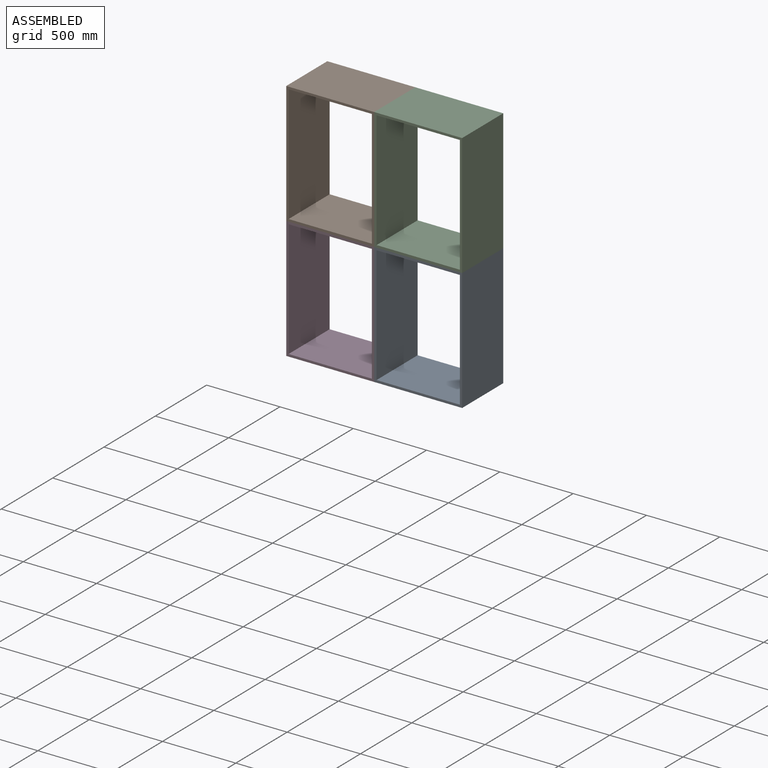
[diagram: assembled view]
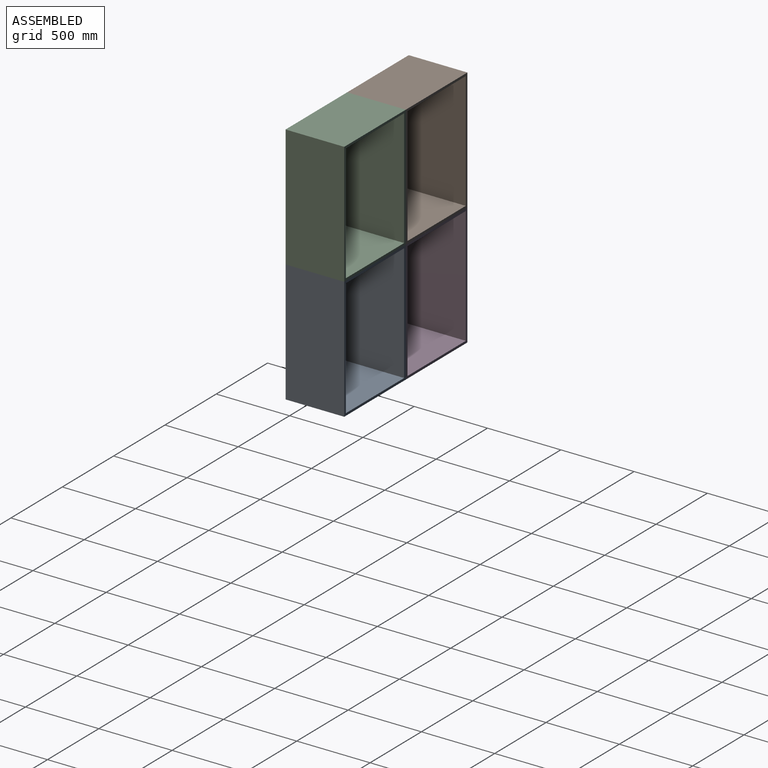
[diagram: assembled view, second angle]
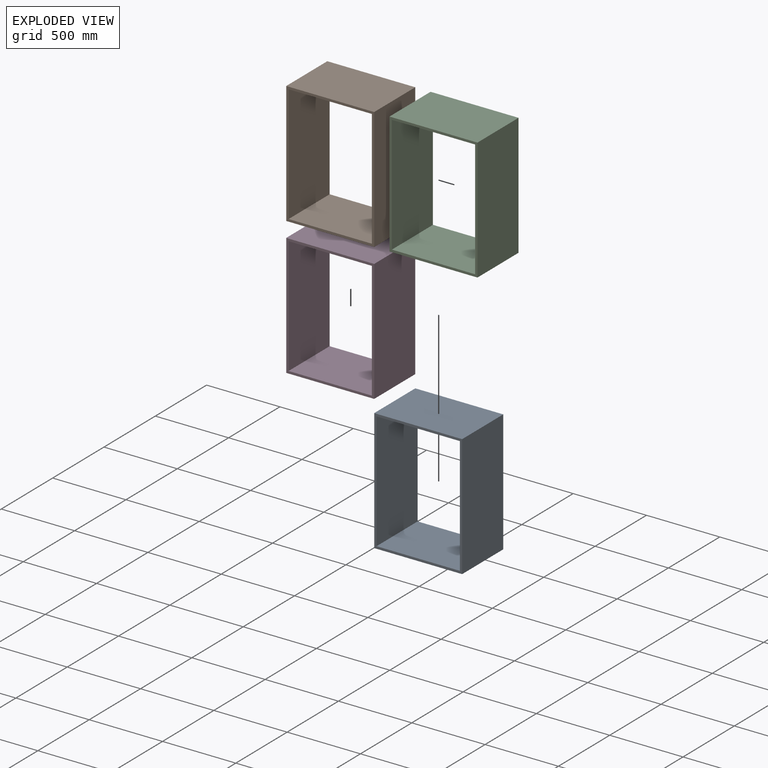
[diagram: exploded view]
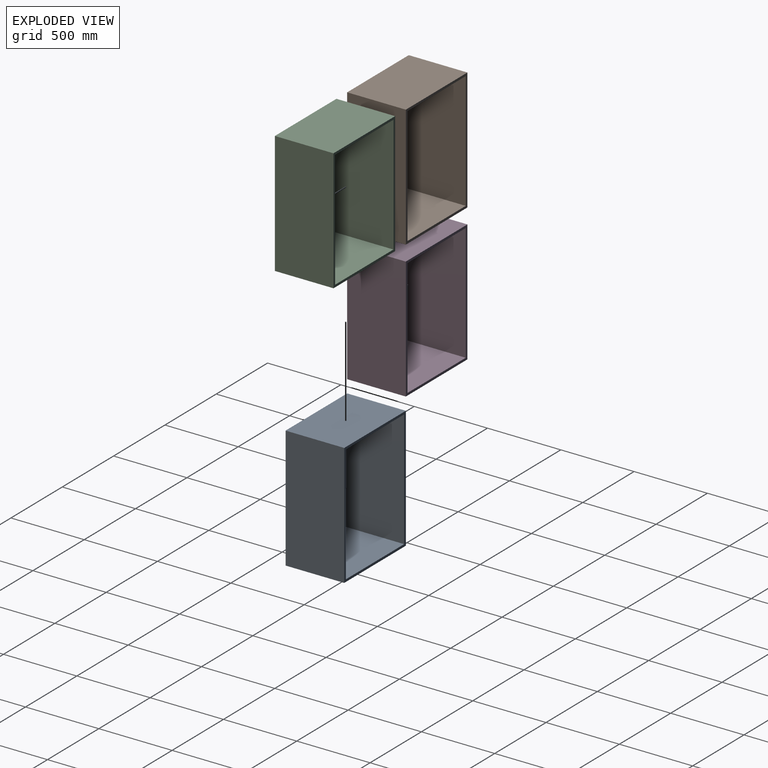
[diagram: exploded view, second angle]
ASSEMBLY  parts=4 mates=3
PART A: 10 faces, bbox 600x400x832 mm
  f0: plane 832x400mm, normal (-1,0,0), area 332800mm2, adj f2,f3,f6,f9
  f1: plane 800x400mm, normal (1,0,0), area 320000mm2, adj f2,f3,f4,f8
  f2: plane 832x600mm, normal (0,-1,0), area 44800mm2, adj f0,f1,f4,f5,f6,f7,f8,f9
  f3: plane 832x600mm, normal (0,1,0), area 44800mm2, adj f0,f1,f4,f5,f6,f7,f8,f9
  f4: plane 568x400mm, normal (0,0,-1), area 227200mm2, adj f1,f2,f3,f7
  f5: plane 832x400mm, normal (1,0,0), area 332800mm2, adj f2,f3,f6,f9
  f6: plane 600x400mm, normal (0,0,1), area 240000mm2, adj f0,f2,f3,f5
  f7: plane 800x400mm, normal (-1,0,0), area 320000mm2, adj f2,f3,f4,f8
  f8: plane 568x400mm, normal (0,0,1), area 227200mm2, adj f1,f2,f3,f7
  f9: plane 600x400mm, normal (0,0,-1), area 240000mm2, adj f0,f2,f3,f5
PART B: same geometry as A
PART C: same geometry as A
PART D: same geometry as A
PLACE A t=(596,611.13,-559.26)mm
PLACE B t=(-4,611.13,272.74)mm
PLACE C t=(596,611.13,272.74)mm
PLACE D t=(-4,611.13,-559.26)mm
MATE fastened C.f9 <-> A.f6  axis (0,0,-1) through (896,411.13,256.74)mm
MATE fastened B.f5 <-> C.f0  axis (1,0,0) through (596,411.13,672.74)mm
MATE fastened B.f9 <-> D.f6  axis (0,0,-1) through (296,411.13,256.74)mm
